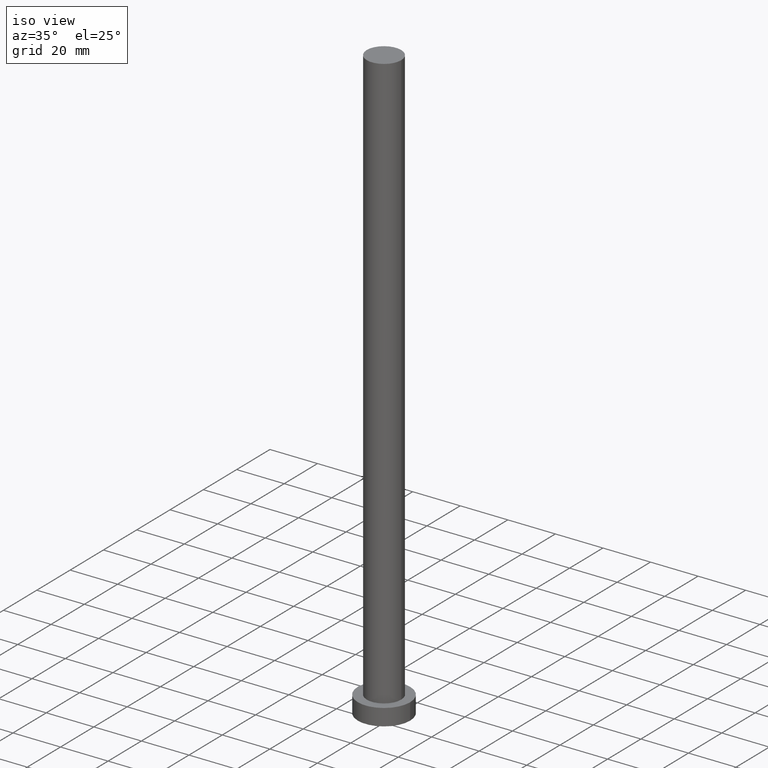
[diagram: clean part render]
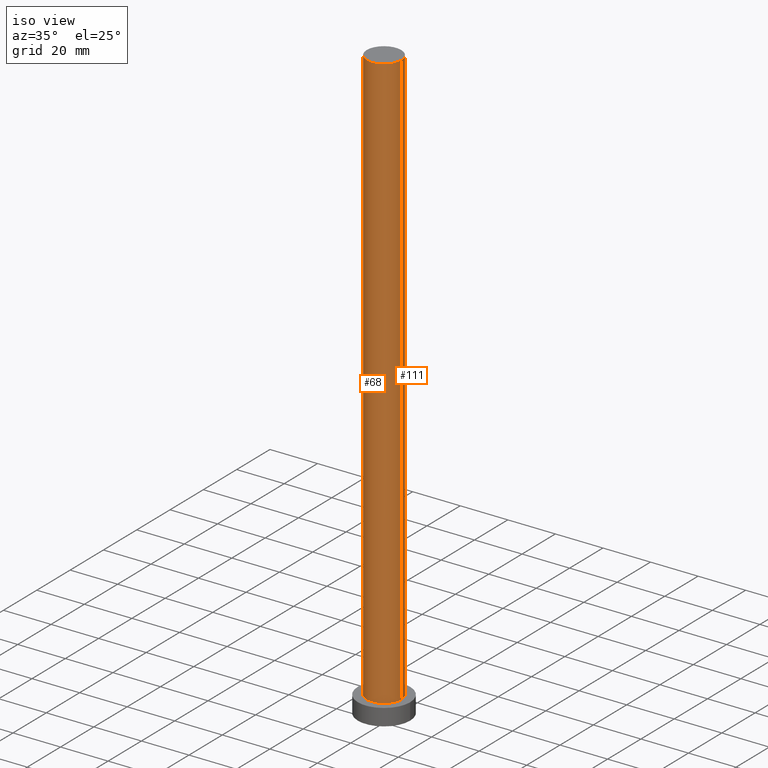
[diagram: same view with one multi-face feature highlighted, each face labeled with its STEP entity id]
A machine part, iso view. The highlighted faces form ONE feature: a constant-radius fillet chain: 2 tangent blend faces with common blend radius 7.25 mm. The faces share edges in the B-rep.
Their STEP definitions:
[1] entity #111 (Cylinder):
#1 = EDGE_LOOP ( 'NONE', ( #228, #205, #51, #34 ) ) ;
#11 = AXIS2_PLACEMENT_3D ( 'NONE', #81, #115, #42 ) ;
#21 = LINE ( 'NONE', #193, #89 ) ;
#24 = CARTESIAN_POINT ( 'NONE',  ( 0.000000000000000000, 0.000000000000000000, 250.0000000000000000 ) ) ;
#30 = EDGE_CURVE ( 'NONE', #168, #223, #21, .T. ) ;
#34 = ORIENTED_EDGE ( 'NONE', *, *, #141, .F. ) ;
#36 = CIRCLE ( 'NONE', #90, 7.250000000000000000 ) ;
#38 = DIRECTION ( 'NONE',  ( -0.000000000000000000, -0.000000000000000000, -1.000000000000000000 ) ) ;
#42 = DIRECTION ( 'NONE',  ( 1.000000000000000000, 0.000000000000000000, 0.000000000000000000 ) ) ;
#45 = EDGE_CURVE ( 'NONE', #223, #153, #233, .T. ) ;
#51 = ORIENTED_EDGE ( 'NONE', *, *, #45, .T. ) ;
#55 = VECTOR ( 'NONE', #211, 1000.000000000000000 ) ;
#57 = DIRECTION ( 'NONE',  ( -0.000000000000000000, -0.000000000000000000, -1.000000000000000000 ) ) ;
#60 = LINE ( 'NONE', #156, #55 ) ;
#75 = CARTESIAN_POINT ( 'NONE',  ( 7.250000000000000000, 8.878689293818310074E-16, 7.000000000000000000 ) ) ;
#81 = CARTESIAN_POINT ( 'NONE',  ( 0.000000000000000000, 0.000000000000000000, 7.000000000000000000 ) ) ;
#86 = CARTESIAN_POINT ( 'NONE',  ( -7.250000000000000000, 0.000000000000000000, 7.000000000000000000 ) ) ;
#89 = VECTOR ( 'NONE', #38, 1000.000000000000000 ) ;
#90 = AXIS2_PLACEMENT_3D ( 'NONE', #239, #159, #217 ) ;
#102 = CYLINDRICAL_SURFACE ( 'NONE', #148, 7.250000000000000000 ) ;
#111 = ADVANCED_FACE ( 'NONE', ( #234 ), #102, .T. ) ;
#115 = DIRECTION ( 'NONE',  ( 0.000000000000000000, 0.000000000000000000, 1.000000000000000000 ) ) ;
#130 = VERTEX_POINT ( 'NONE', #178 ) ;
#141 = EDGE_CURVE ( 'NONE', #130, #153, #60, .T. ) ;
#148 = AXIS2_PLACEMENT_3D ( 'NONE', #24, #57, #212 ) ;
#153 = VERTEX_POINT ( 'NONE', #86 ) ;
#156 = CARTESIAN_POINT ( 'NONE',  ( -7.250000000000000000, 0.000000000000000000, 250.0000000000000000 ) ) ;
#159 = DIRECTION ( 'NONE',  ( 0.000000000000000000, 0.000000000000000000, 1.000000000000000000 ) ) ;
#161 = CARTESIAN_POINT ( 'NONE',  ( 7.250000000000000000, 8.878689293818310074E-16, 250.0000000000000000 ) ) ;
#162 = EDGE_CURVE ( 'NONE', #168, #130, #36, .T. ) ;
#168 = VERTEX_POINT ( 'NONE', #161 ) ;
#178 = CARTESIAN_POINT ( 'NONE',  ( -7.250000000000000000, 0.000000000000000000, 250.0000000000000000 ) ) ;
#193 = CARTESIAN_POINT ( 'NONE',  ( 7.250000000000000000, 8.878689293818310074E-16, 250.0000000000000000 ) ) ;
#205 = ORIENTED_EDGE ( 'NONE', *, *, #30, .T. ) ;
#211 = DIRECTION ( 'NONE',  ( -0.000000000000000000, -0.000000000000000000, -1.000000000000000000 ) ) ;
#212 = DIRECTION ( 'NONE',  ( -1.000000000000000000, 0.000000000000000000, 0.000000000000000000 ) ) ;
#217 = DIRECTION ( 'NONE',  ( 1.000000000000000000, 0.000000000000000000, 0.000000000000000000 ) ) ;
#223 = VERTEX_POINT ( 'NONE', #75 ) ;
#228 = ORIENTED_EDGE ( 'NONE', *, *, #162, .F. ) ;
#233 = CIRCLE ( 'NONE', #11, 7.250000000000000000 ) ;
#234 = FACE_OUTER_BOUND ( 'NONE', #1, .T. ) ;
#239 = CARTESIAN_POINT ( 'NONE',  ( 0.000000000000000000, 0.000000000000000000, 250.0000000000000000 ) ) ;
[2] entity #68 (Cylinder):
#21 = LINE ( 'NONE', #193, #89 ) ;
#23 = CARTESIAN_POINT ( 'NONE',  ( 0.000000000000000000, 0.000000000000000000, 250.0000000000000000 ) ) ;
#30 = EDGE_CURVE ( 'NONE', #168, #223, #21, .T. ) ;
#38 = DIRECTION ( 'NONE',  ( -0.000000000000000000, -0.000000000000000000, -1.000000000000000000 ) ) ;
#40 = CIRCLE ( 'NONE', #180, 7.250000000000000000 ) ;
#55 = VECTOR ( 'NONE', #211, 1000.000000000000000 ) ;
#60 = LINE ( 'NONE', #156, #55 ) ;
#68 = ADVANCED_FACE ( 'NONE', ( #151 ), #210, .T. ) ;
#75 = CARTESIAN_POINT ( 'NONE',  ( 7.250000000000000000, 8.878689293818310074E-16, 7.000000000000000000 ) ) ;
#86 = CARTESIAN_POINT ( 'NONE',  ( -7.250000000000000000, 0.000000000000000000, 7.000000000000000000 ) ) ;
#89 = VECTOR ( 'NONE', #38, 1000.000000000000000 ) ;
#95 = CIRCLE ( 'NONE', #247, 7.250000000000000000 ) ;
#106 = CARTESIAN_POINT ( 'NONE',  ( 0.000000000000000000, 0.000000000000000000, 7.000000000000000000 ) ) ;
#112 = ORIENTED_EDGE ( 'NONE', *, *, #170, .T. ) ;
#125 = EDGE_CURVE ( 'NONE', #130, #168, #40, .T. ) ;
#130 = VERTEX_POINT ( 'NONE', #178 ) ;
#137 = ORIENTED_EDGE ( 'NONE', *, *, #30, .F. ) ;
#140 = DIRECTION ( 'NONE',  ( -0.000000000000000000, -0.000000000000000000, -1.000000000000000000 ) ) ;
#141 = EDGE_CURVE ( 'NONE', #130, #153, #60, .T. ) ;
#142 = AXIS2_PLACEMENT_3D ( 'NONE', #23, #140, #216 ) ;
#151 = FACE_OUTER_BOUND ( 'NONE', #166, .T. ) ;
#153 = VERTEX_POINT ( 'NONE', #86 ) ;
#156 = CARTESIAN_POINT ( 'NONE',  ( -7.250000000000000000, 0.000000000000000000, 250.0000000000000000 ) ) ;
#161 = CARTESIAN_POINT ( 'NONE',  ( 7.250000000000000000, 8.878689293818310074E-16, 250.0000000000000000 ) ) ;
#166 = EDGE_LOOP ( 'NONE', ( #137, #167, #226, #112 ) ) ;
#167 = ORIENTED_EDGE ( 'NONE', *, *, #125, .F. ) ;
#168 = VERTEX_POINT ( 'NONE', #161 ) ;
#170 = EDGE_CURVE ( 'NONE', #153, #223, #95, .T. ) ;
#175 = DIRECTION ( 'NONE',  ( 0.000000000000000000, 0.000000000000000000, 1.000000000000000000 ) ) ;
#176 = CARTESIAN_POINT ( 'NONE',  ( 0.000000000000000000, 0.000000000000000000, 250.0000000000000000 ) ) ;
#178 = CARTESIAN_POINT ( 'NONE',  ( -7.250000000000000000, 0.000000000000000000, 250.0000000000000000 ) ) ;
#180 = AXIS2_PLACEMENT_3D ( 'NONE', #176, #175, #191 ) ;
#191 = DIRECTION ( 'NONE',  ( 1.000000000000000000, 0.000000000000000000, 0.000000000000000000 ) ) ;
#193 = CARTESIAN_POINT ( 'NONE',  ( 7.250000000000000000, 8.878689293818310074E-16, 250.0000000000000000 ) ) ;
#210 = CYLINDRICAL_SURFACE ( 'NONE', #142, 7.250000000000000000 ) ;
#211 = DIRECTION ( 'NONE',  ( -0.000000000000000000, -0.000000000000000000, -1.000000000000000000 ) ) ;
#216 = DIRECTION ( 'NONE',  ( -1.000000000000000000, 0.000000000000000000, 0.000000000000000000 ) ) ;
#223 = VERTEX_POINT ( 'NONE', #75 ) ;
#226 = ORIENTED_EDGE ( 'NONE', *, *, #141, .T. ) ;
#231 = DIRECTION ( 'NONE',  ( 0.000000000000000000, 0.000000000000000000, 1.000000000000000000 ) ) ;
#247 = AXIS2_PLACEMENT_3D ( 'NONE', #106, #231, #250 ) ;
#250 = DIRECTION ( 'NONE',  ( 1.000000000000000000, 0.000000000000000000, 0.000000000000000000 ) ) ;